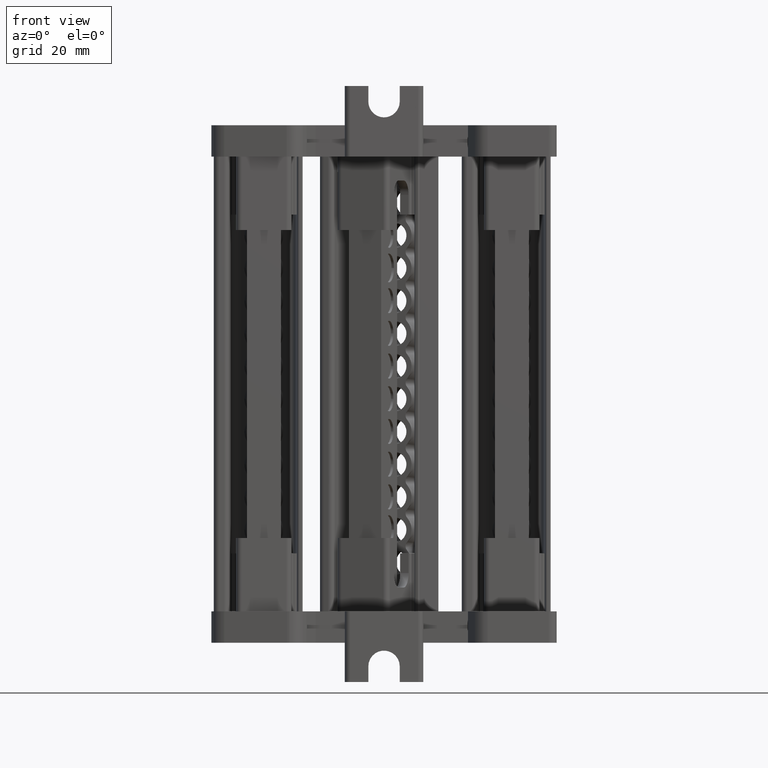
[diagram: clean part render]
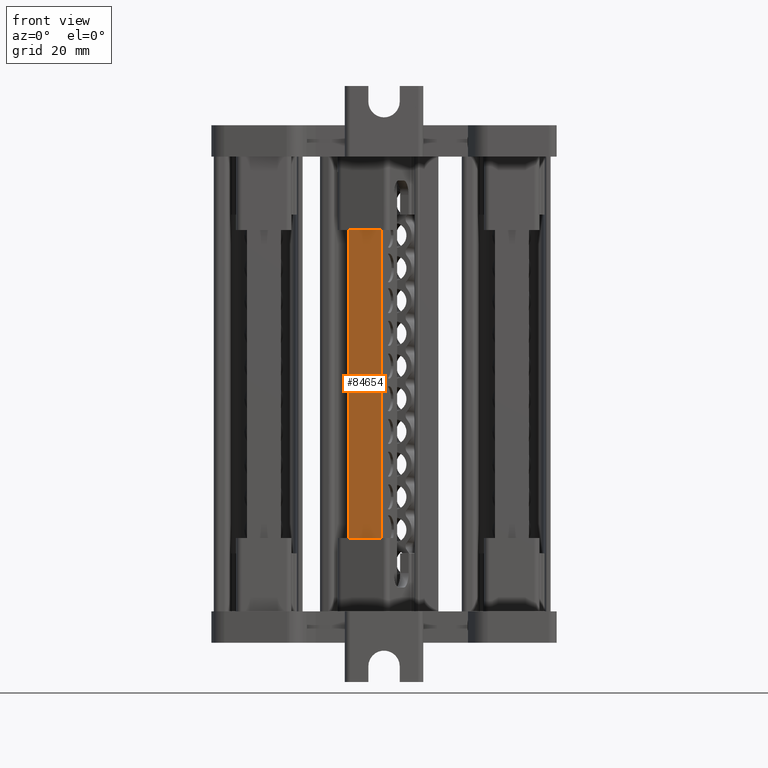
[diagram: same view with one face highlighted and labeled with its STEP entity id]
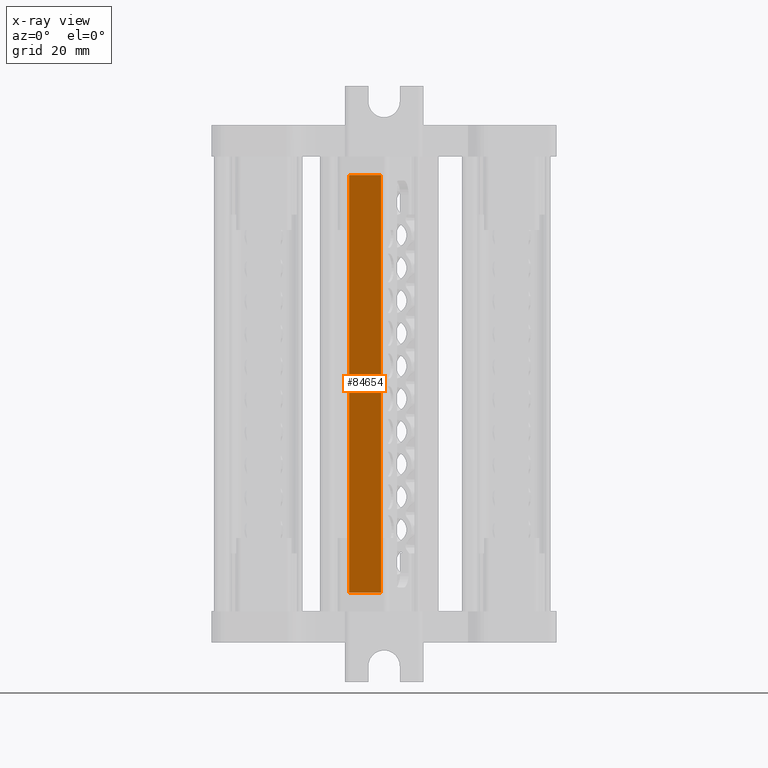
[diagram: x-ray of the same camera — body ghosted, the highlighted face saturated]
A machine part, front view. The second image highlights one B-rep face of the part: STEP entity #84654.
The next image is the same camera in x-ray: the body ghosted, the highlighted face saturated — about 0% of this face is hidden behind the body in this view.
In plain terms, the highlighted planar face has unit normal (0.342, 0.9397, -0).
Its self-contained STEP definition (entity closure, byte-faithful):
#6515 = FACE_OUTER_BOUND ( 'NONE', #54965, .T. ) ;
#6518 = PLANE ( 'NONE',  #29225 ) ;
#6555 = CARTESIAN_POINT ( 'NONE',  ( -304.5665637595379800, 206.2604737895740400, 16.94122990646636100 ) ) ;
#6556 = DIRECTION ( 'NONE',  ( 0.3420192031325456300, 0.9396929629876870100, -3.223490688574679400E-017 ) ) ;
#6582 = DIRECTION ( 'NONE',  ( -0.9396929629876870100, 0.3420192031325456300, 0.0000000000000000000 ) ) ;
#9531 = VECTOR ( 'NONE', #18562, 1000.000000000000000 ) ;
#9559 = VECTOR ( 'NONE', #18596, 1000.000000000000000 ) ;
#9677 = VECTOR ( 'NONE', #19083, 1000.000000000000000 ) ;
#9975 = CARTESIAN_POINT ( 'NONE',  ( -298.4585595001181600, 204.0373489692125900, 96.78122990646637900 ) ) ;
#10025 = CARTESIAN_POINT ( 'NONE',  ( -304.5665637595382100, 206.2604737895741200, 96.78122990646637900 ) ) ;
#10621 = VECTOR ( 'NONE', #34574, 1000.000000000000000 ) ;
#10727 = CARTESIAN_POINT ( 'NONE',  ( -304.5665637595381000, 206.2604737895740900, 16.94122990646642500 ) ) ;
#10772 = CARTESIAN_POINT ( 'NONE',  ( -298.4585595001180400, 204.0373489692125600, 16.94122990646643600 ) ) ;
#18507 = LINE ( 'NONE', #18588, #9531 ) ;
#18556 = CARTESIAN_POINT ( 'NONE',  ( -298.4585595001180400, 204.0373489692125600, 16.94122990646633300 ) ) ;
#18562 = DIRECTION ( 'NONE',  ( -0.9396929629876882300, 0.3420192031325422500, -1.601283208593958100E-015 ) ) ;
#18583 = LINE ( 'NONE', #18556, #9559 ) ;
#18588 = CARTESIAN_POINT ( 'NONE',  ( -298.4585595001180400, 204.0373489692125300, 16.94122990646643600 ) ) ;
#18596 = DIRECTION ( 'NONE',  ( 1.215675086891363000E-015, -4.424681687140827200E-016, -1.000000000000000000 ) ) ;
#19083 = DIRECTION ( 'NONE',  ( 1.215675086891363000E-015, -4.424681687140827200E-016, -1.000000000000000000 ) ) ;
#19099 = LINE ( 'NONE', #19117, #9677 ) ;
#19117 = CARTESIAN_POINT ( 'NONE',  ( -304.5665637595381000, 206.2604737895741200, 16.94122990646632600 ) ) ;
#29225 = AXIS2_PLACEMENT_3D ( 'NONE', #6555, #6556, #6582 ) ;
#34574 = DIRECTION ( 'NONE',  ( 0.9396929629876870100, -0.3420192031325456300, -0.0000000000000000000 ) ) ;
#34623 = LINE ( 'NONE', #34628, #10621 ) ;
#34628 = CARTESIAN_POINT ( 'NONE',  ( -304.5665637595379800, 206.2604737895740400, 96.78122990646637900 ) ) ;
#54965 = EDGE_LOOP ( 'NONE', ( #61836, #61805, #61705, #61837 ) ) ;
#61705 = ORIENTED_EDGE ( 'NONE', *, *, #77260, .F. ) ;
#61805 = ORIENTED_EDGE ( 'NONE', *, *, #77446, .T. ) ;
#61836 = ORIENTED_EDGE ( 'NONE', *, *, #78972, .F. ) ;
#61837 = ORIENTED_EDGE ( 'NONE', *, *, #77270, .F. ) ;
#68784 = VERTEX_POINT ( 'NONE', #9975 ) ;
#68917 = VERTEX_POINT ( 'NONE', #10025 ) ;
#69788 = VERTEX_POINT ( 'NONE', #10772 ) ;
#69791 = VERTEX_POINT ( 'NONE', #10727 ) ;
#77260 = EDGE_CURVE ( 'NONE', #69788, #69791, #18507, .T. ) ;
#77270 = EDGE_CURVE ( 'NONE', #68784, #69788, #18583, .T. ) ;
#77446 = EDGE_CURVE ( 'NONE', #68917, #69791, #19099, .T. ) ;
#78972 = EDGE_CURVE ( 'NONE', #68917, #68784, #34623, .T. ) ;
#84654 = ADVANCED_FACE ( 'NONE', ( #6515 ), #6518, .F. ) ;